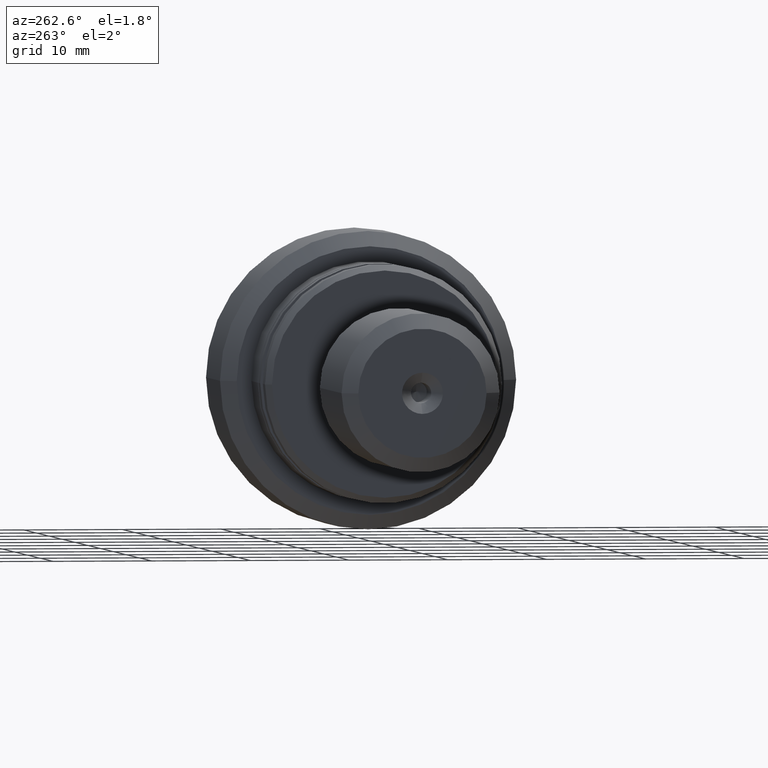
[diagram: clean part render]
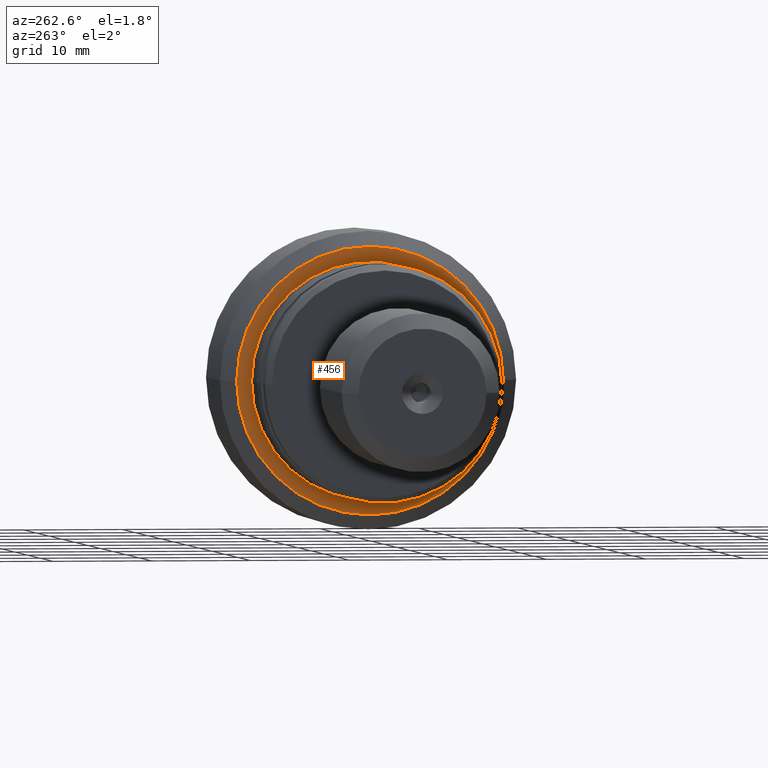
[diagram: same view with one face highlighted and labeled with its STEP entity id]
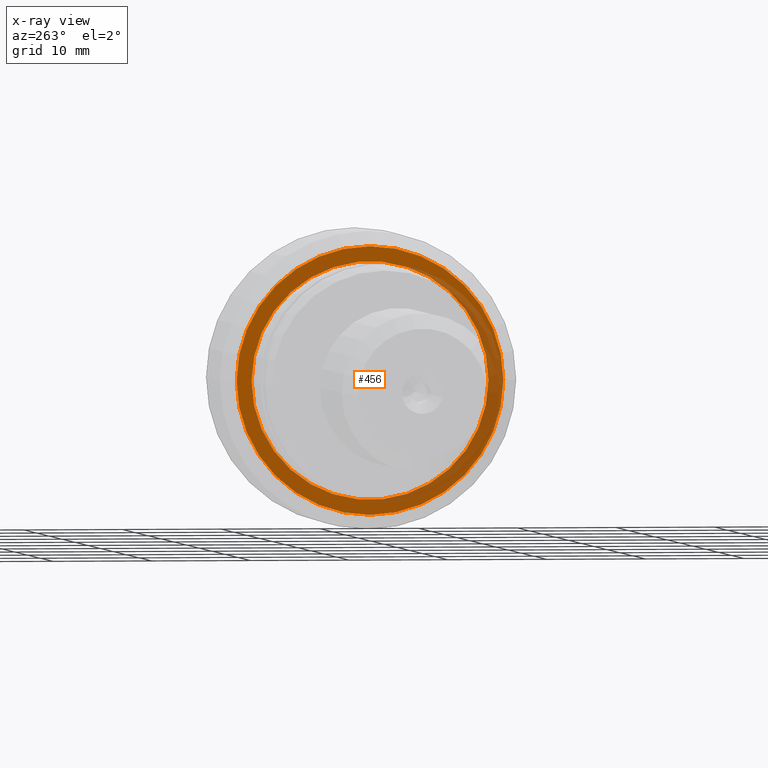
[diagram: x-ray of the same camera — body ghosted, the highlighted face saturated]
A machine part, auxiliary view. The second image highlights one B-rep face of the part: STEP entity #456.
The next image is the same camera in x-ray: the body ghosted, the highlighted face saturated — about 28% of this face is hidden behind the body in this view.
In plain terms, the highlighted planar face has unit normal (-1, 0, 0).
Its self-contained STEP definition (entity closure, byte-faithful):
#11 = ORIENTED_EDGE ( 'NONE', *, *, #1302, .T. ) ;
#123 = DIRECTION ( 'NONE',  ( -6.424901762876739076E-16, -1.000000000000000000, 0.000000000000000000 ) ) ;
#142 = CIRCLE ( 'NONE', #1121, 13.50000000000068034 ) ;
#234 = DIRECTION ( 'NONE',  ( -1.000000000000000000, 6.415603269213350828E-16, -0.000000000000000000 ) ) ;
#386 = CARTESIAN_POINT ( 'NONE',  ( -13.00000000000000355, -13.50000000000069100, 1.745121688785019051E-15 ) ) ;
#405 = DIRECTION ( 'NONE',  ( -1.000000000000000000, 6.415603269213350828E-16, -0.000000000000000000 ) ) ;
#456 = ADVANCED_FACE ( 'NONE', ( #2017, #1630 ), #2028, .T. ) ;
#470 = CARTESIAN_POINT ( 'NONE',  ( -12.99999999999998401, 11.99999999999998224, 1.469576158976823158E-15 ) ) ;
#489 = DIRECTION ( 'NONE',  ( -1.000000000000000000, 6.415603269213350828E-16, -0.000000000000000000 ) ) ;
#580 = CARTESIAN_POINT ( 'NONE',  ( -12.99999999999999467, -1.108617705555801137E-14, 0.000000000000000000 ) ) ;
#669 = VERTEX_POINT ( 'NONE', #1365 ) ;
#739 = ORIENTED_EDGE ( 'NONE', *, *, #2087, .F. ) ;
#816 = VERTEX_POINT ( 'NONE', #1774 ) ;
#842 = EDGE_CURVE ( 'NONE', #669, #843, #2314, .T. ) ;
#843 = VERTEX_POINT ( 'NONE', #470 ) ;
#982 = DIRECTION ( 'NONE',  ( -5.782411586589360597E-16, -1.000000000000000000, 0.000000000000000000 ) ) ;
#1054 = AXIS2_PLACEMENT_3D ( 'NONE', #1429, #2184, #123 ) ;
#1059 = AXIS2_PLACEMENT_3D ( 'NONE', #1665, #489, #1615 ) ;
#1083 = ORIENTED_EDGE ( 'NONE', *, *, #842, .F. ) ;
#1109 = EDGE_LOOP ( 'NONE', ( #1530, #11 ) ) ;
#1121 = AXIS2_PLACEMENT_3D ( 'NONE', #580, #234, #1531 ) ;
#1302 = EDGE_CURVE ( 'NONE', #1896, #816, #142, .T. ) ;
#1365 = CARTESIAN_POINT ( 'NONE',  ( -12.99999999999999822, -12.00000000000000355, 0.000000000000000000 ) ) ;
#1410 = EDGE_CURVE ( 'NONE', #816, #1896, #2152, .T. ) ;
#1429 = CARTESIAN_POINT ( 'NONE',  ( -12.99999999999999467, -1.108617705555801137E-14, 0.000000000000000000 ) ) ;
#1530 = ORIENTED_EDGE ( 'NONE', *, *, #1410, .T. ) ;
#1531 = DIRECTION ( 'NONE',  ( -6.424901762876739076E-16, -1.000000000000000000, 0.000000000000000000 ) ) ;
#1607 = AXIS2_PLACEMENT_3D ( 'NONE', #1841, #2415, #2392 ) ;
#1615 = DIRECTION ( 'NONE',  ( -5.782411586589360597E-16, -1.000000000000000000, 0.000000000000000000 ) ) ;
#1621 = EDGE_LOOP ( 'NONE', ( #1083, #739 ) ) ;
#1630 = FACE_BOUND ( 'NONE', #1621, .T. ) ;
#1665 = CARTESIAN_POINT ( 'NONE',  ( -12.99999999999999112, -1.108617705555801452E-14, 0.000000000000000000 ) ) ;
#1774 = CARTESIAN_POINT ( 'NONE',  ( -12.99999999999998579, 13.50000000000066969, 0.000000000000000000 ) ) ;
#1841 = CARTESIAN_POINT ( 'NONE',  ( -13.00000000000000178, -12.00000000000000355, 0.000000000000000000 ) ) ;
#1896 = VERTEX_POINT ( 'NONE', #386 ) ;
#2017 = FACE_OUTER_BOUND ( 'NONE', #1109, .T. ) ;
#2028 = PLANE ( 'NONE',  #1607 ) ;
#2087 = EDGE_CURVE ( 'NONE', #843, #669, #2406, .T. ) ;
#2099 = CARTESIAN_POINT ( 'NONE',  ( -12.99999999999999112, -1.108617705555801452E-14, 0.000000000000000000 ) ) ;
#2118 = AXIS2_PLACEMENT_3D ( 'NONE', #2099, #405, #982 ) ;
#2152 = CIRCLE ( 'NONE', #1054, 13.50000000000068034 ) ;
#2184 = DIRECTION ( 'NONE',  ( -1.000000000000000000, 6.415603269213350828E-16, -0.000000000000000000 ) ) ;
#2314 = CIRCLE ( 'NONE', #2118, 11.99999999999999289 ) ;
#2392 = DIRECTION ( 'NONE',  ( -6.415603269213350828E-16, -1.000000000000000000, 0.000000000000000000 ) ) ;
#2406 = CIRCLE ( 'NONE', #1059, 11.99999999999999289 ) ;
#2415 = DIRECTION ( 'NONE',  ( -1.000000000000000000, 6.415603269213350828E-16, 0.000000000000000000 ) ) ;